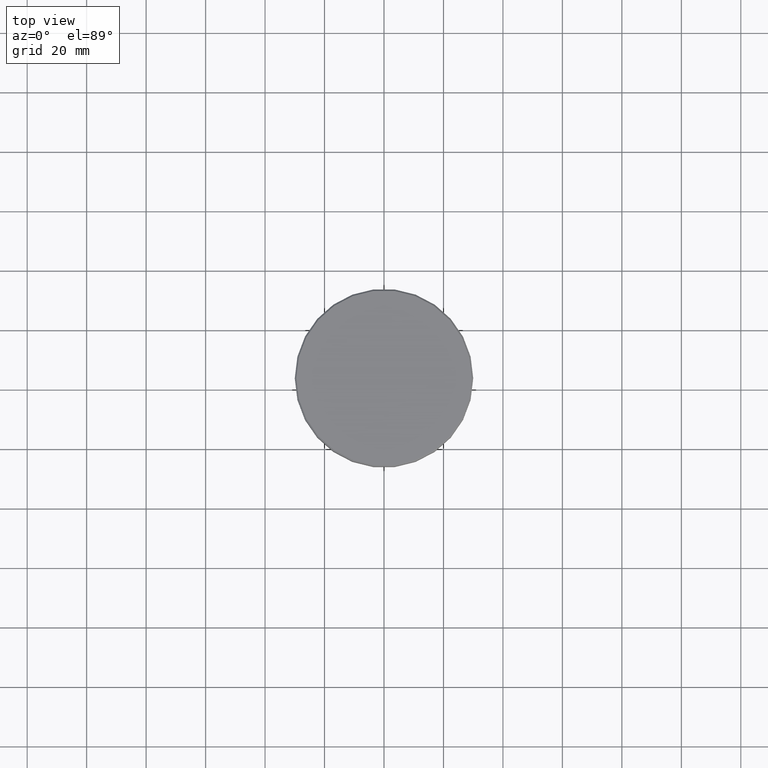
[diagram: clean part render]
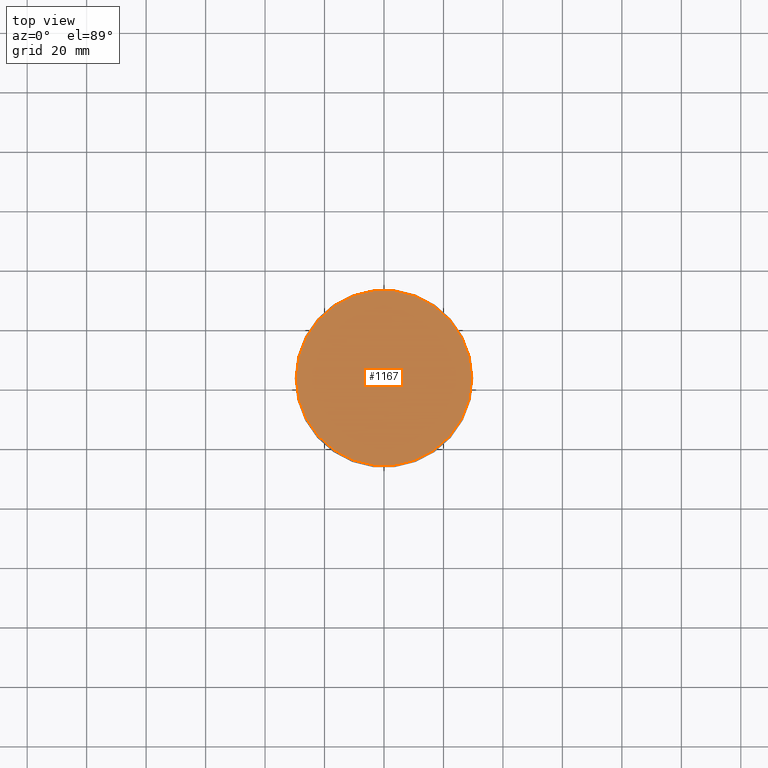
[diagram: same view with one face highlighted and labeled with its STEP entity id]
A machine part, top view. The second image highlights one B-rep face of the part: STEP entity #1167.
In plain terms, the highlighted planar face has unit normal (0, -0, 1).
Its self-contained STEP definition (entity closure, byte-faithful):
#6 = DIRECTION ( 'NONE',  ( 0.000000000000000000, -0.000000000000000000, 1.000000000000000000 ) ) ;
#29 = ORIENTED_EDGE ( 'NONE', *, *, #1011, .T. ) ;
#56 = CIRCLE ( 'NONE', #261, 29.49999999999997158 ) ;
#104 = PLANE ( 'NONE',  #1030 ) ;
#229 = EDGE_LOOP ( 'NONE', ( #361, #29 ) ) ;
#241 = CIRCLE ( 'NONE', #560, 29.49999999999997158 ) ;
#261 = AXIS2_PLACEMENT_3D ( 'NONE', #502, #1090, #270 ) ;
#270 = DIRECTION ( 'NONE',  ( 1.000000000000000000, 0.000000000000000000, 0.000000000000000000 ) ) ;
#291 = FACE_OUTER_BOUND ( 'NONE', #229, .T. ) ;
#361 = ORIENTED_EDGE ( 'NONE', *, *, #503, .T. ) ;
#373 = CARTESIAN_POINT ( 'NONE',  ( 0.000000000000000000, 0.000000000000000000, 0.000000000000000000 ) ) ;
#502 = CARTESIAN_POINT ( 'NONE',  ( 0.000000000000000000, 0.000000000000000000, 0.000000000000000000 ) ) ;
#503 = EDGE_CURVE ( 'NONE', #956, #586, #56, .T. ) ;
#560 = AXIS2_PLACEMENT_3D ( 'NONE', #907, #1176, #1172 ) ;
#583 = CARTESIAN_POINT ( 'NONE',  ( 29.49999999999997158, 3.643324227463373813E-15, 0.000000000000000000 ) ) ;
#586 = VERTEX_POINT ( 'NONE', #583 ) ;
#806 = CARTESIAN_POINT ( 'NONE',  ( -29.49999999999997158, 0.000000000000000000, 0.000000000000000000 ) ) ;
#907 = CARTESIAN_POINT ( 'NONE',  ( 0.000000000000000000, 0.000000000000000000, 0.000000000000000000 ) ) ;
#956 = VERTEX_POINT ( 'NONE', #806 ) ;
#1000 = DIRECTION ( 'NONE',  ( 1.000000000000000000, 0.000000000000000000, 0.000000000000000000 ) ) ;
#1011 = EDGE_CURVE ( 'NONE', #586, #956, #241, .T. ) ;
#1030 = AXIS2_PLACEMENT_3D ( 'NONE', #373, #6, #1000 ) ;
#1090 = DIRECTION ( 'NONE',  ( -0.000000000000000000, -0.000000000000000000, 1.000000000000000000 ) ) ;
#1167 = ADVANCED_FACE ( 'NONE', ( #291 ), #104, .T. ) ;
#1172 = DIRECTION ( 'NONE',  ( 1.000000000000000000, 0.000000000000000000, 0.000000000000000000 ) ) ;
#1176 = DIRECTION ( 'NONE',  ( -0.000000000000000000, -0.000000000000000000, 1.000000000000000000 ) ) ;